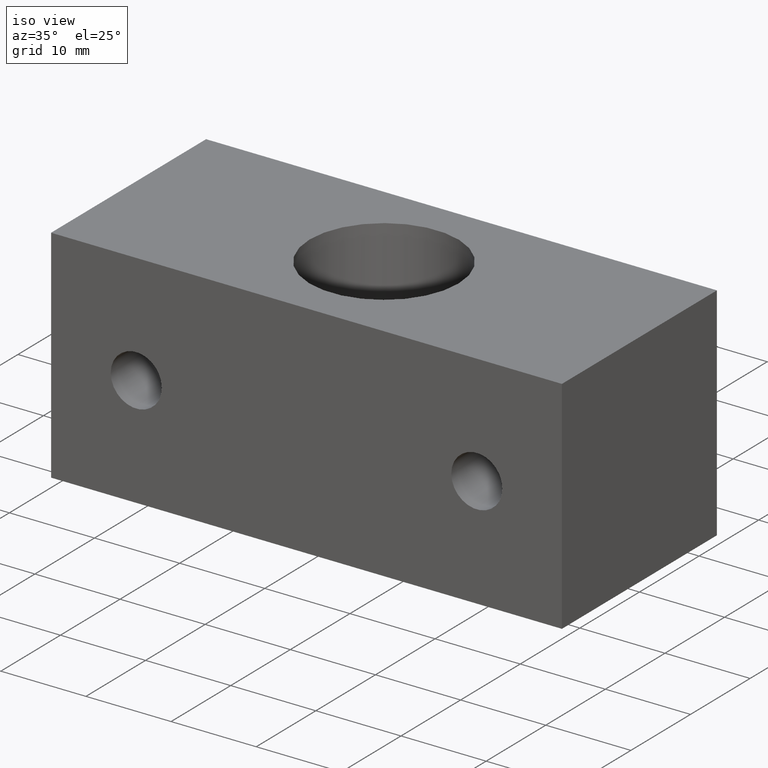
[diagram: clean part render]
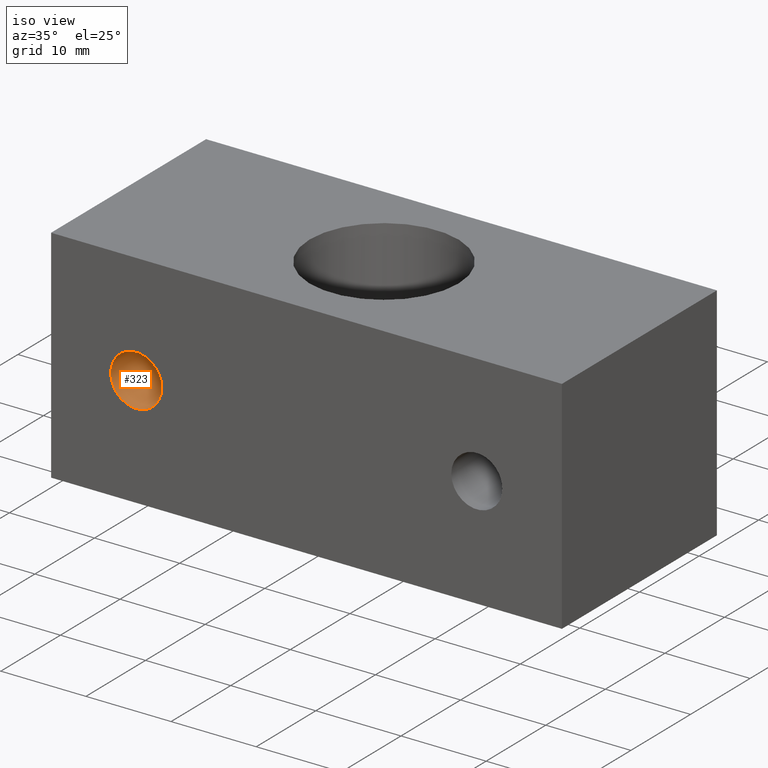
[diagram: same view with one face highlighted and labeled with its STEP entity id]
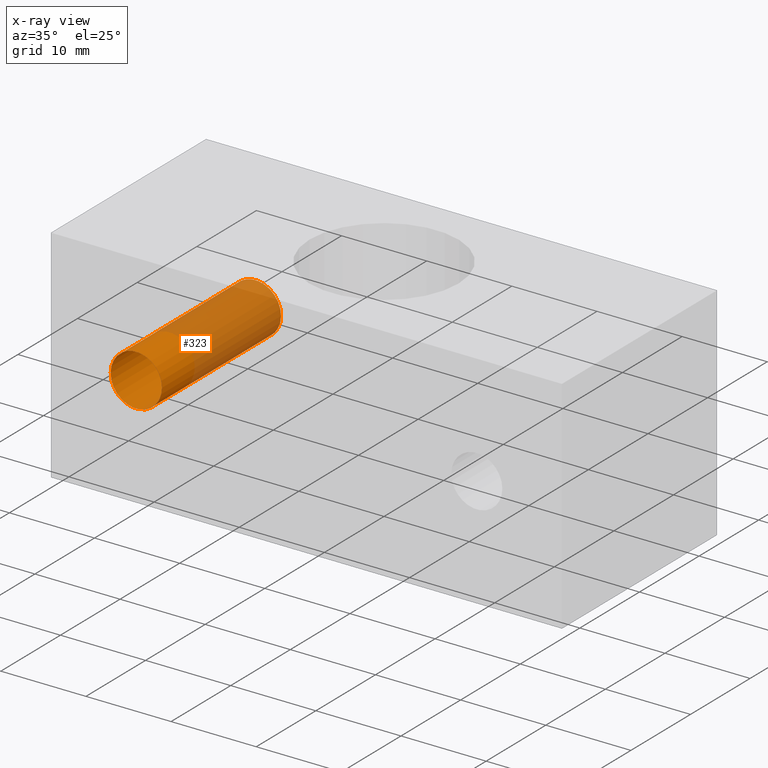
[diagram: x-ray of the same camera — body ghosted, the highlighted face saturated]
A machine part, iso view. The second image highlights one B-rep face of the part: STEP entity #323.
The next image is the same camera in x-ray: the body ghosted, the highlighted face saturated — about 58% of this face is hidden behind the body in this view.
In plain terms, the highlighted cylindrical surface (bore or boss wall) has radius 3 mm, axis along (0, 1, 0).
Its self-contained STEP definition (entity closure, byte-faithful):
#165=CARTESIAN_POINT('',(-16.999999999999886,-13.0,0.0));
#166=VERTEX_POINT('',#165);
#167=CARTESIAN_POINT('',(-22.999999999999876,-13.0,0.0));
#168=VERTEX_POINT('',#167);
#169=CARTESIAN_POINT('',(-19.999999999999886,-13.0,0.0));
#170=DIRECTION('',(0.0,1.0,6.123234E-017));
#171=DIRECTION('',(1.0,0.0,0.0));
#172=AXIS2_PLACEMENT_3D('',#169,#170,#171);
#173=CIRCLE('',#172,2.999999999999988);
#174=EDGE_CURVE('',#166,#168,#173,.T.);
#176=CARTESIAN_POINT('',(-19.999999999999886,-13.0,0.0));
#177=DIRECTION('',(0.0,1.0,6.123234E-017));
#178=DIRECTION('',(1.0,0.0,0.0));
#179=AXIS2_PLACEMENT_3D('',#176,#177,#178);
#180=CIRCLE('',#179,2.999999999999988);
#181=EDGE_CURVE('',#168,#166,#180,.T.);
#289=CARTESIAN_POINT('',(-19.999999999999886,13.0,0.0));
#290=DIRECTION('',(0.0,1.0,6.123234E-017));
#291=DIRECTION('',(1.0,0.0,0.0));
#292=AXIS2_PLACEMENT_3D('',#289,#290,#291);
#293=CYLINDRICAL_SURFACE('',#292,2.999999999999988);
#294=ORIENTED_EDGE('',*,*,#181,.F.);
#295=ORIENTED_EDGE('',*,*,#174,.F.);
#296=CARTESIAN_POINT('',(-16.999999999999886,7.000004422703000,0.0));
#297=VERTEX_POINT('',#296);
#298=CARTESIAN_POINT('',(-16.999999999999886,7.000004422702999,0.0));
#299=DIRECTION('',(0.0,-1.0,0.0));
#300=VECTOR('',#299,20.000004422703004);
#301=LINE('',#298,#300);
#302=EDGE_CURVE('',#297,#166,#301,.T.);
#303=ORIENTED_EDGE('',*,*,#302,.F.);
#304=CARTESIAN_POINT('',(-22.999999999999876,7.000004422703000,0.0));
#305=VERTEX_POINT('',#304);
#306=CARTESIAN_POINT('',(-19.999999999999886,7.000004422703000,0.0));
#307=DIRECTION('',(0.0,1.0,6.123234E-017));
#308=DIRECTION('',(1.0,0.0,0.0));
#309=AXIS2_PLACEMENT_3D('',#306,#307,#308);
#310=CIRCLE('',#309,2.999999999999988);
#311=EDGE_CURVE('',#297,#305,#310,.T.);
#312=ORIENTED_EDGE('',*,*,#311,.T.);
#313=CARTESIAN_POINT('',(-19.999999999999886,7.000004422703000,0.0));
#314=DIRECTION('',(0.0,1.0,6.123234E-017));
#315=DIRECTION('',(1.0,0.0,0.0));
#316=AXIS2_PLACEMENT_3D('',#313,#314,#315);
#317=CIRCLE('',#316,2.999999999999988);
#318=EDGE_CURVE('',#305,#297,#317,.T.);
#319=ORIENTED_EDGE('',*,*,#318,.T.);
#320=ORIENTED_EDGE('',*,*,#302,.T.);
#321=EDGE_LOOP('',(#294,#295,#303,#312,#319,#320));
#322=FACE_OUTER_BOUND('',#321,.T.);
#323=ADVANCED_FACE('',(#322),#293,.F.);